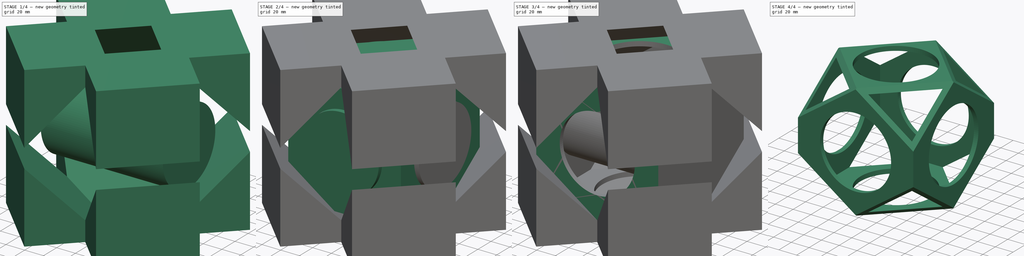
[diagram: build sequence overview — one tinted view per stage of 4, left to right]
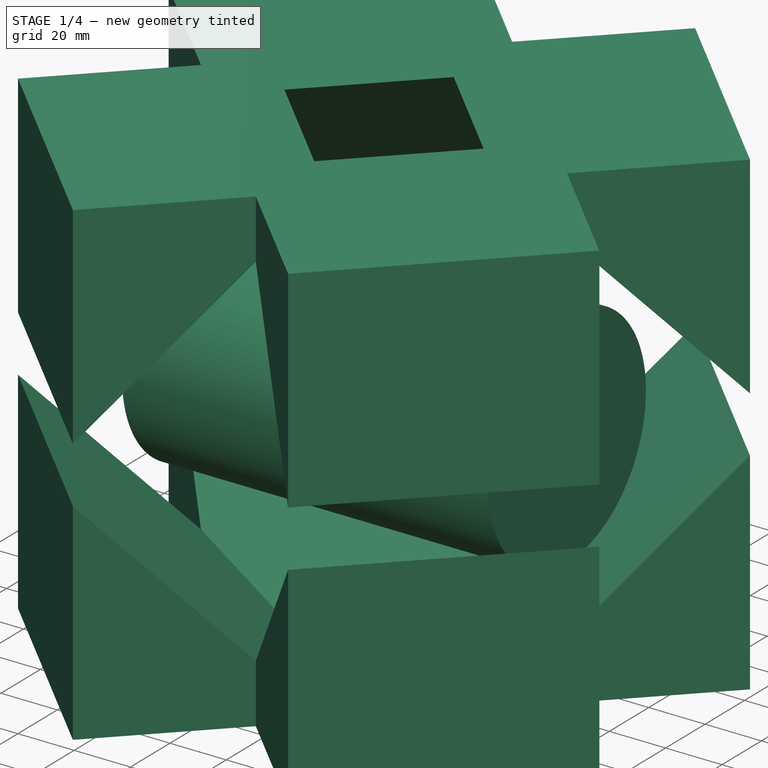
[diagram: stage 1 of 4 — iso view after this stage's code; geometry added in this stage tinted green]
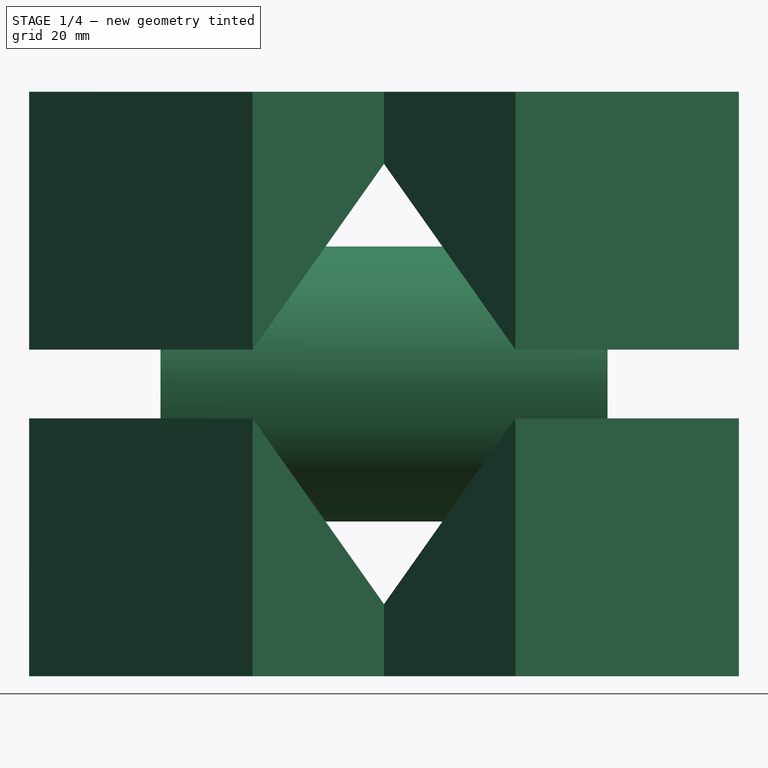
[diagram: stage 1 of 4 — front view after this stage's code; geometry added in this stage tinted green]
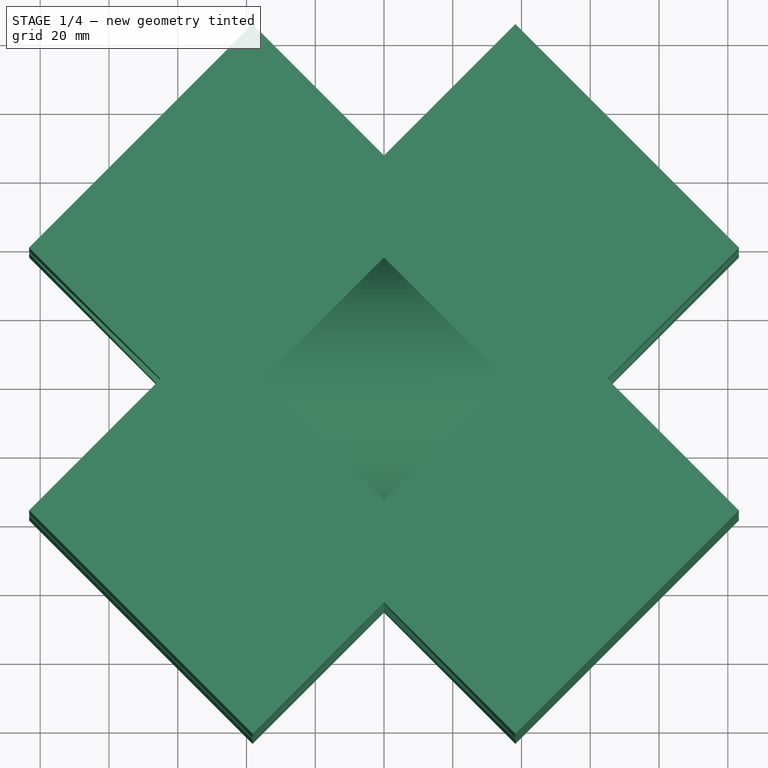
[diagram: stage 1 of 4 — top view after this stage's code; geometry added in this stage tinted green]
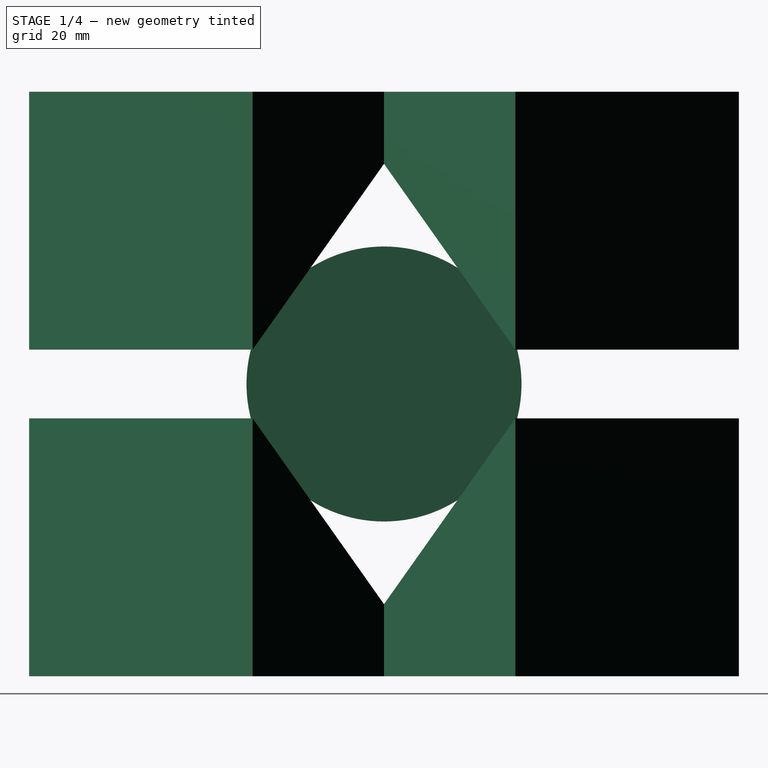
[diagram: stage 1 of 4 — right view after this stage's code; geometry added in this stage tinted green]
FCSTD DOCUMENT  (FreeCAD 0.15R4671 (Git))
Label: suoerdupercreationcube
License: All rights reserved
LicenseURL: http://en.wikipedia.org/wiki/All_rights_reserved
objects: Part::Cut×6, Part::Cylinder×3, Part::Box×2, Sketcher::SketchObject×2, PartDesign::Pad×2
note: 17 computed .brp shape members not serialized (recipe doc carries the construction recipe); baked Part::Feature solids carry a one-line shape summary decoded from their .brp

FEATURE [Part::Cylinder] Cylinder002
  Angle = 360
  Height = 130
  Placement = pos=(-65,0,0) rot=(0,1,0;1.5708rad)
  Radius = 40
FEATURE [Sketcher::SketchObject] Sketch
  Placement = pos=(0,0,0) rot=(-0.862856,-0.357407,-0.357407;4.56541rad)
  sketch-geometry (12):
    g0: LineSegment StartX=-100 StartY=10 StartZ=0 EndX=-100 EndY=85 EndZ=0
    g1: LineSegment StartX=-100 StartY=85 StartZ=0 EndX=-25 EndY=85 EndZ=0
    g2: LineSegment StartX=-25 StartY=85 StartZ=0 EndX=-100 EndY=10 EndZ=0
    g3: LineSegment StartX=25 StartY=85 StartZ=0 EndX=100 EndY=85 EndZ=0
    g4: LineSegment StartX=100 StartY=85 StartZ=0 EndX=100 EndY=10 EndZ=0
    g5: LineSegment StartX=100 StartY=10 StartZ=0 EndX=25 EndY=85 EndZ=0
    g6: LineSegment StartX=25 StartY=-85 StartZ=0 EndX=100 EndY=-85 EndZ=0
    g7: LineSegment StartX=100 StartY=-85 StartZ=0 EndX=100 EndY=-10 EndZ=0
    g8: LineSegment StartX=100 StartY=-10 StartZ=0 EndX=25 EndY=-85 EndZ=0
    g9: LineSegment StartX=-100 StartY=-10 StartZ=0 EndX=-100 EndY=-85 EndZ=0
    g10: LineSegment StartX=-100 StartY=-85 StartZ=0 EndX=-25 EndY=-85 EndZ=0
    g11: LineSegment StartX=-100 StartY=-10 StartZ=0 EndX=-25 EndY=-85 EndZ=0
  constraints (34):
    c: Vertical(g0)
    c: Coincident(g0,g1)
    c: Horizontal(g1)
    c: Coincident(g1,g2)
    c: Coincident(g2,g0)
    c: Horizontal(g3)
    c: Coincident(g3,g4)
    c: Vertical(g4)
    c: Coincident(g4,g5)
    c: Coincident(g5,g3)
    c: Horizontal(g6)
    c: Coincident(g6,g7)
    c: Vertical(g7)
    c: Coincident(g7,g8)
    c: Coincident(g8,g6)
    c: Vertical(g9)
    c: Coincident(g9,g10)
    c: Horizontal(g10)
    c: Coincident(g9,g11)
    c: Coincident(g11,g10)
    c: Equal(g0,g1)
    c: Equal(g1,g3)
    c: Equal(g3,g4)
    c: Equal(g4,g6)
    c: Equal(g6,g7)
    c: Equal(g7,g9)
    c: Equal(g9,g10)
    c: Symmetric(g0,g9,g-1)
    c: Symmetric(g1,g3,g-2)
    c: Symmetric(g4,g7,g-1)
    c: Symmetric(g10,g6,g-2)
    c: Distance(g0,g9) = 20
    c: DistanceX(g1,g3) = 50
    c: Distance(g0,g3) = 200
FEATURE [PartDesign::Pad] Pad
  Length = 91.9239
  Length2 = 100
  Midplane = true
  Placement = pos=(0,0,0) rot=(-0.862856,-0.357407,-0.357407;4.56541rad)
  Sketch = -> Sketch
  Type = 0
FEATURE [Sketcher::SketchObject] Sketch001
  Placement = pos=(0,0,0) rot=(0.281085,0.678598,0.678598;2.59356rad)
  sketch-geometry (12):
    g0: LineSegment StartX=-100 StartY=10 StartZ=0 EndX=-100 EndY=85 EndZ=0
    g1: LineSegment StartX=-100 StartY=85 StartZ=0 EndX=-25 EndY=85 EndZ=0
    g2: LineSegment StartX=-25 StartY=85 StartZ=0 EndX=-100 EndY=10 EndZ=0
    g3: LineSegment StartX=25 StartY=85 StartZ=0 EndX=100 EndY=85 EndZ=0
    g4: LineSegment StartX=100 StartY=85 StartZ=0 EndX=100 EndY=10 EndZ=0
    g5: LineSegment StartX=100 StartY=10 StartZ=0 EndX=25 EndY=85 EndZ=0
    g6: LineSegment StartX=25 StartY=-85 StartZ=0 EndX=100 EndY=-85 EndZ=0
    g7: LineSegment StartX=100 StartY=-85 StartZ=0 EndX=100 EndY=-10 EndZ=0
    g8: LineSegment StartX=100 StartY=-10 StartZ=0 EndX=25 EndY=-85 EndZ=0
    g9: LineSegment StartX=-100 StartY=-10 StartZ=0 EndX=-100 EndY=-85 EndZ=0
    g10: LineSegment StartX=-100 StartY=-85 StartZ=0 EndX=-25 EndY=-85 EndZ=0
    g11: LineSegment StartX=-100 StartY=-10 StartZ=0 EndX=-25 EndY=-85 EndZ=0
  constraints (34):
    c: Vertical(g0)
    c: Coincident(g0,g1)
    c: Horizontal(g1)
    c: Coincident(g1,g2)
    c: Coincident(g2,g0)
    c: Horizontal(g3)
    c: Coincident(g3,g4)
    c: Vertical(g4)
    c: Coincident(g4,g5)
    c: Coincident(g5,g3)
    c: Horizontal(g6)
    c: Coincident(g6,g7)
    c: Vertical(g7)
    c: Coincident(g7,g8)
    c: Coincident(g8,g6)
    c: Vertical(g9)
    c: Coincident(g9,g10)
    c: Horizontal(g10)
    c: Coincident(g9,g11)
    c: Coincident(g11,g10)
    c: Equal(g0,g1)
    c: Equal(g1,g3)
    c: Equal(g3,g4)
    c: Equal(g4,g6)
    c: Equal(g6,g7)
    c: Equal(g7,g9)
    c: Equal(g9,g10)
    c: Symmetric(g0,g9,g-1)
    c: Symmetric(g1,g3,g-2)
    c: Symmetric(g4,g7,g-1)
    c: Symmetric(g10,g6,g-2)
    c: Distance(g0,g9) = 20
    c: DistanceX(g1,g3) = 50
    c: Distance(g0,g3) = 200
FEATURE [PartDesign::Pad] Pad001
  Length = 91.9239
  Length2 = 100
  Midplane = true
  Placement = pos=(0,0,0) rot=(0.281085,0.678598,0.678598;2.59356rad)
  Sketch = -> Sketch001
  Type = 0
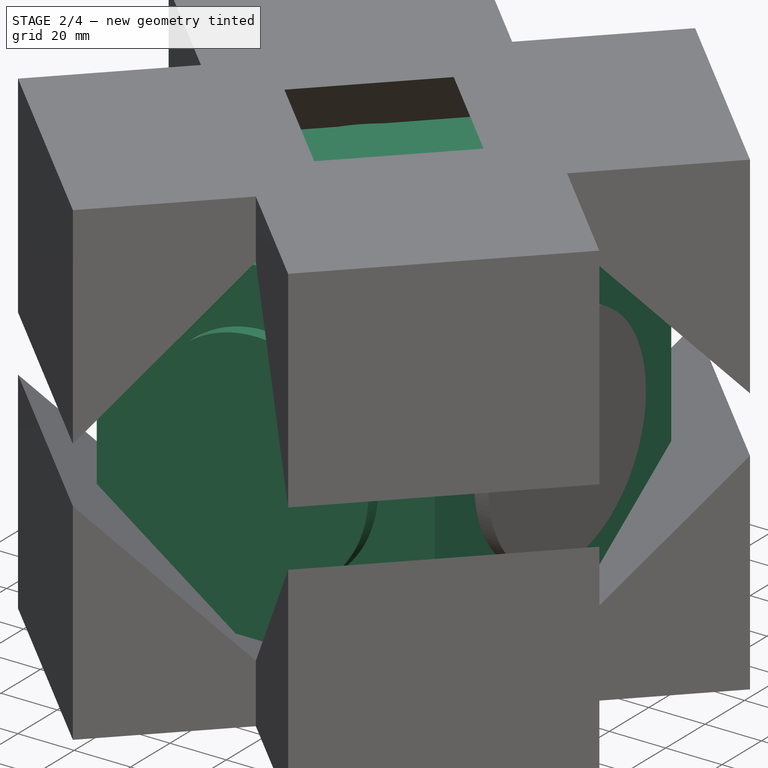
[diagram: stage 2 of 4 — iso view after this stage's code; geometry added in this stage tinted green]
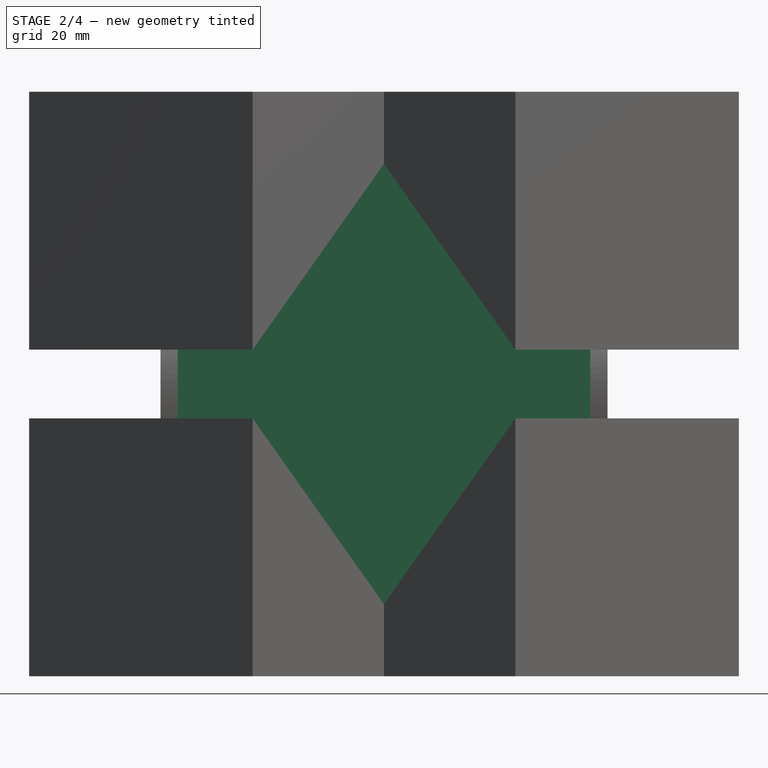
[diagram: stage 2 of 4 — front view after this stage's code; geometry added in this stage tinted green]
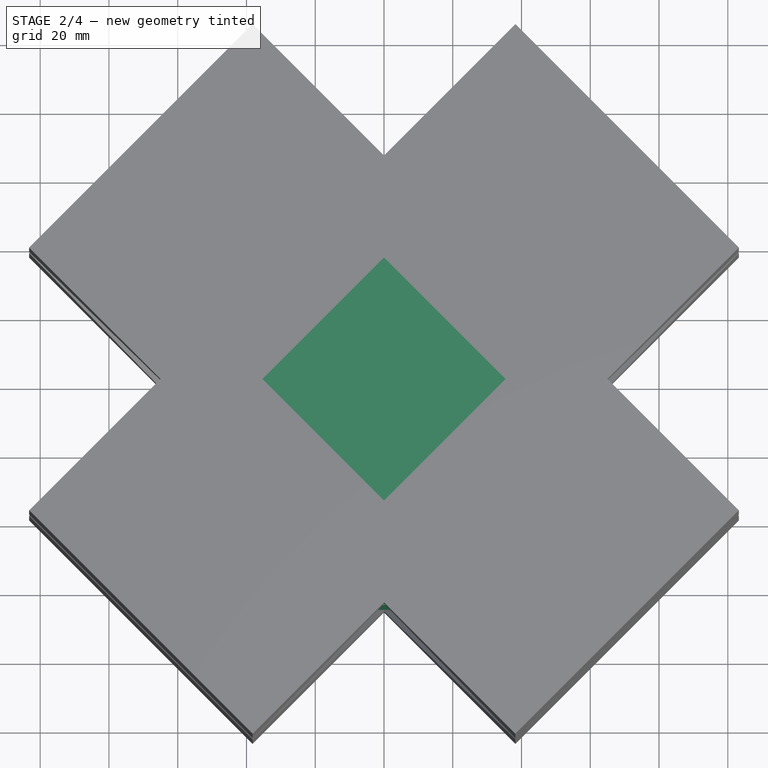
[diagram: stage 2 of 4 — top view after this stage's code; geometry added in this stage tinted green]
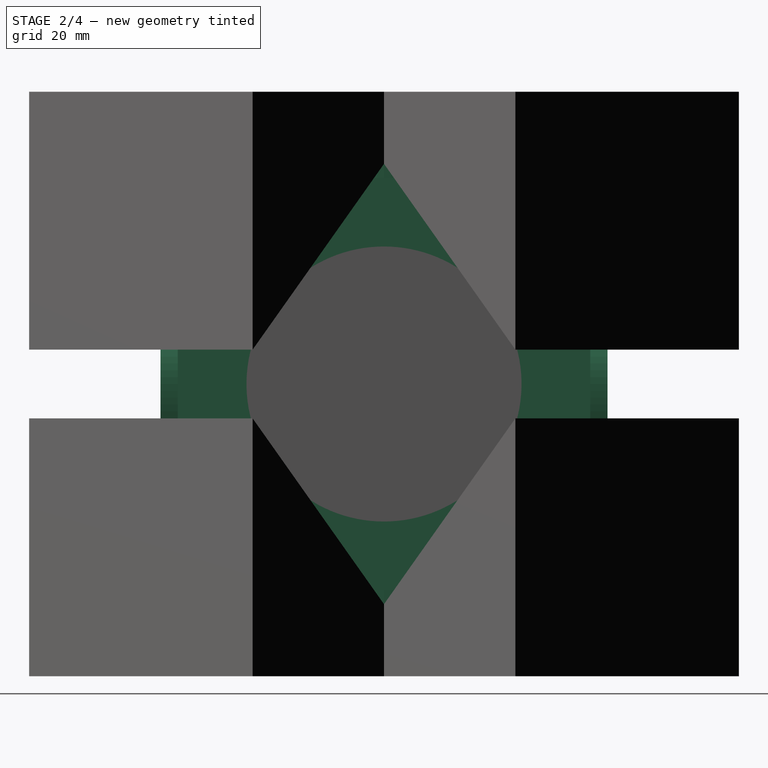
[diagram: stage 2 of 4 — right view after this stage's code; geometry added in this stage tinted green]
FEATURE [Part::Box] Box001  label="Cube001"
  Height = 120
  Length = 120
  Placement = pos=(-60,-60,-60) rot=(0,0,1;0rad)
  Width = 120
FEATURE [Part::Cylinder] Cylinder
  Angle = 360
  Height = 130
  Placement = pos=(0,0,-65) rot=(0,0,1;0rad)
  Radius = 40
FEATURE [Part::Cylinder] Cylinder001
  Angle = 360
  Height = 130
  Placement = pos=(0,65,0) rot=(1,0,0;1.5708rad)
  Radius = 40
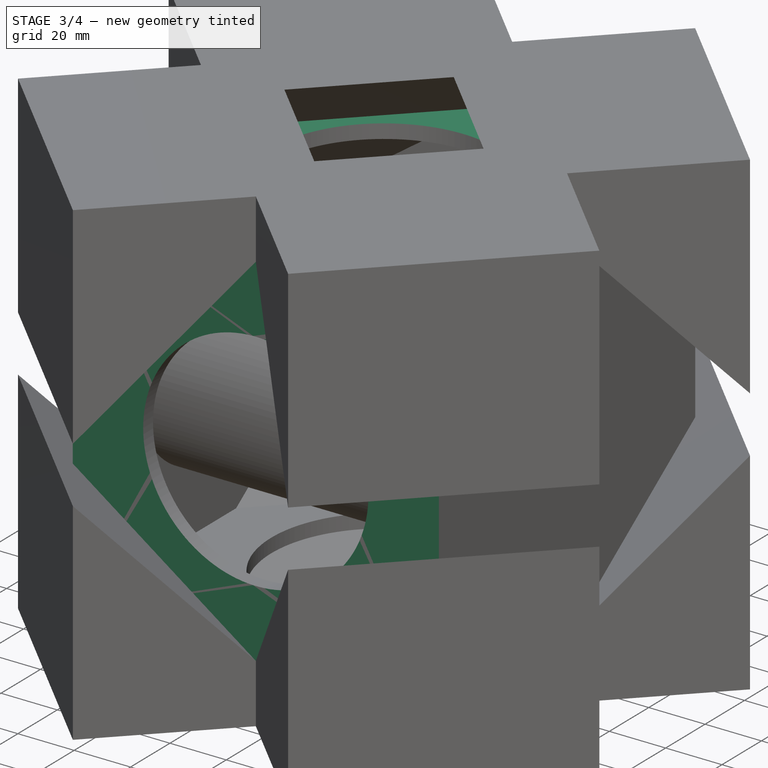
[diagram: stage 3 of 4 — iso view after this stage's code; geometry added in this stage tinted green]
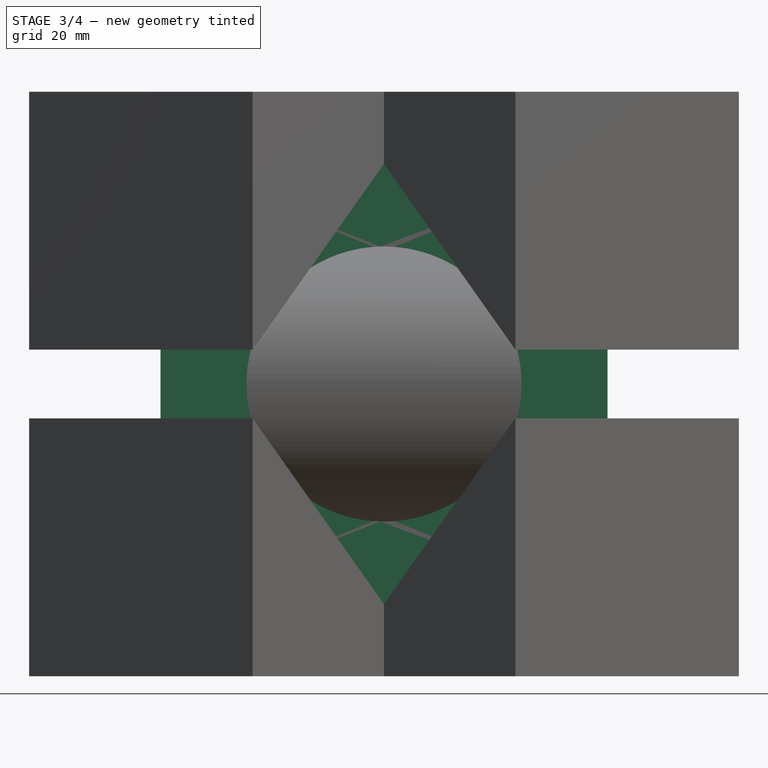
[diagram: stage 3 of 4 — front view after this stage's code; geometry added in this stage tinted green]
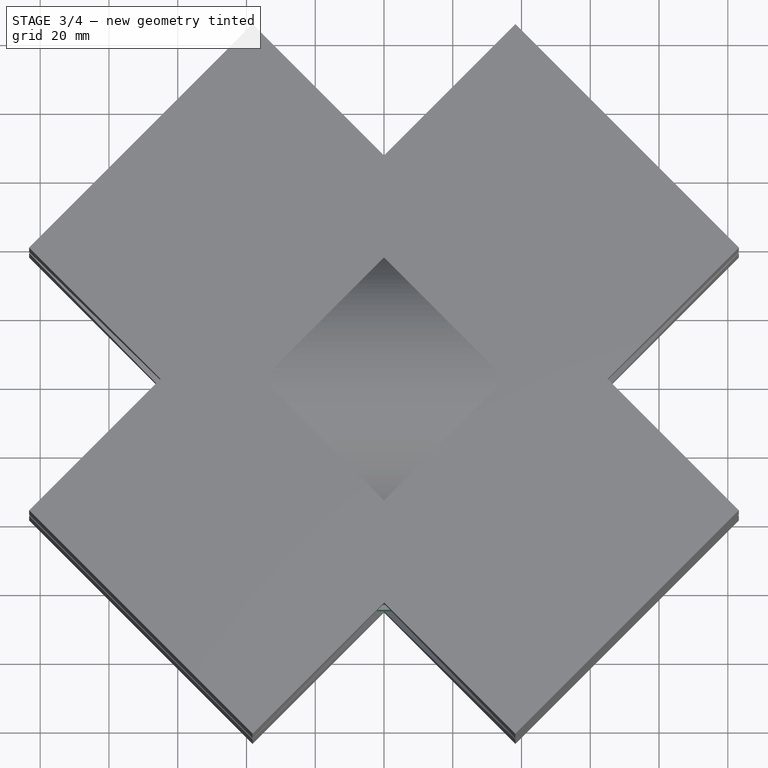
[diagram: stage 3 of 4 — top view after this stage's code; geometry added in this stage tinted green]
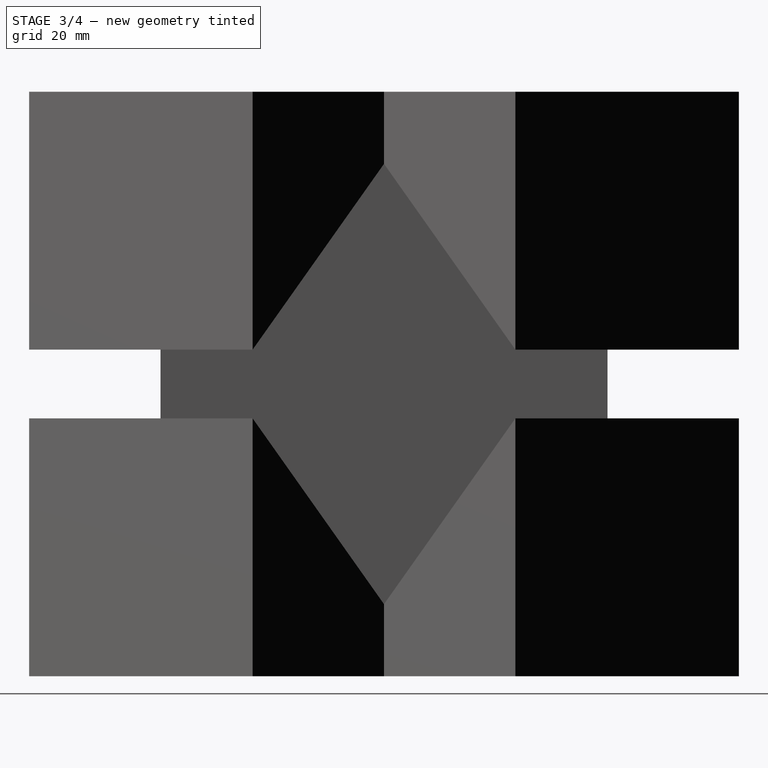
[diagram: stage 3 of 4 — right view after this stage's code; geometry added in this stage tinted green]
FEATURE [Part::Box] Box  label="Cube"
  Height = 130
  Length = 130
  Placement = pos=(-65,-65,-65) rot=(0,0,1;0rad)
  Width = 130
FEATURE [Part::Cut] Cut
  Base = -> Box
  Tool = -> Box001
FEATURE [Part::Cut] Cut001
  Base = -> Cut
  Tool = -> Cylinder
FEATURE [Part::Cut] Cut002
  Base = -> Cut001
  Tool = -> Cylinder001
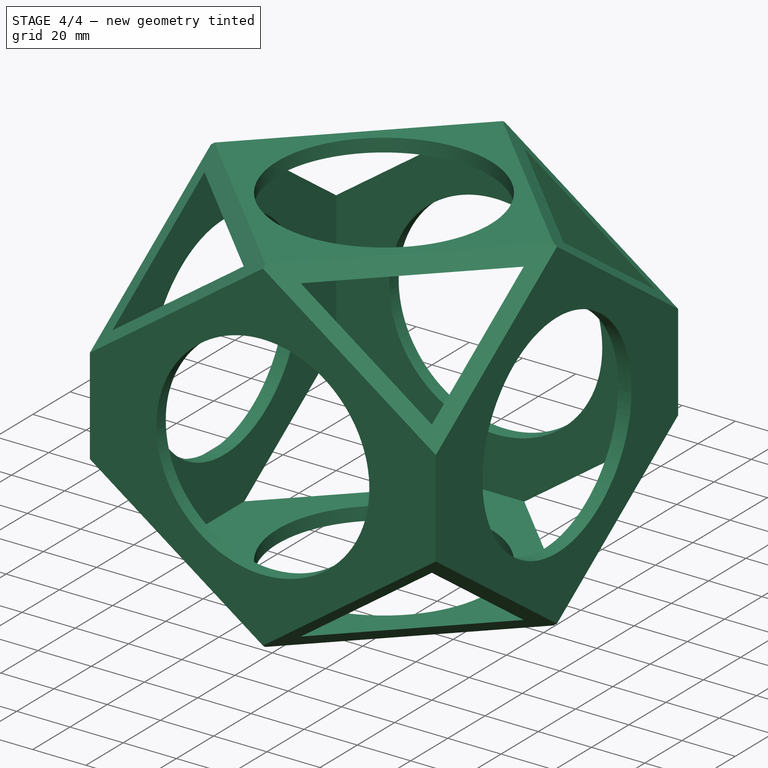
[diagram: stage 4 of 4 — iso view after this stage's code; geometry added in this stage tinted green]
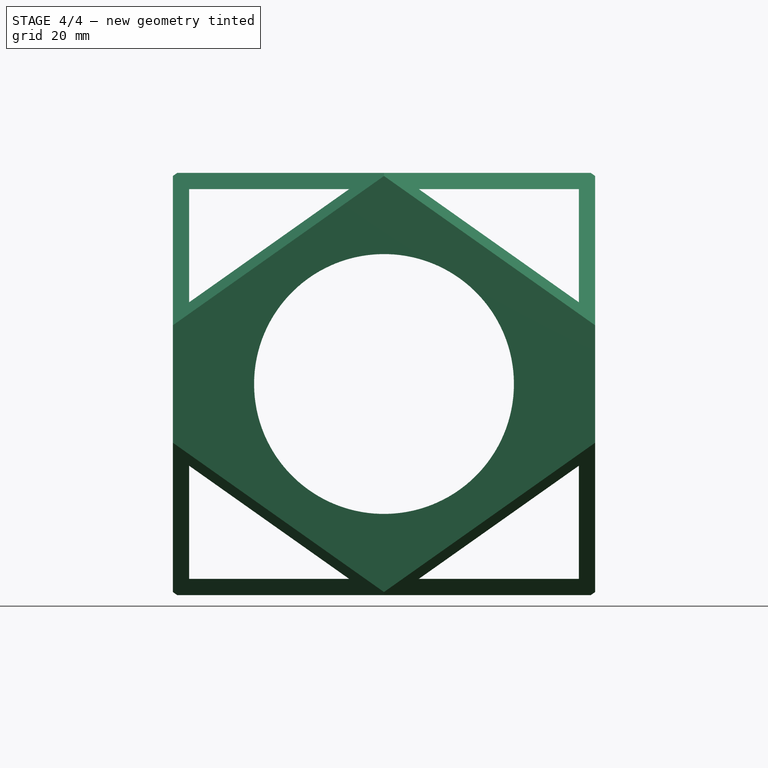
[diagram: stage 4 of 4 — front view after this stage's code; geometry added in this stage tinted green]
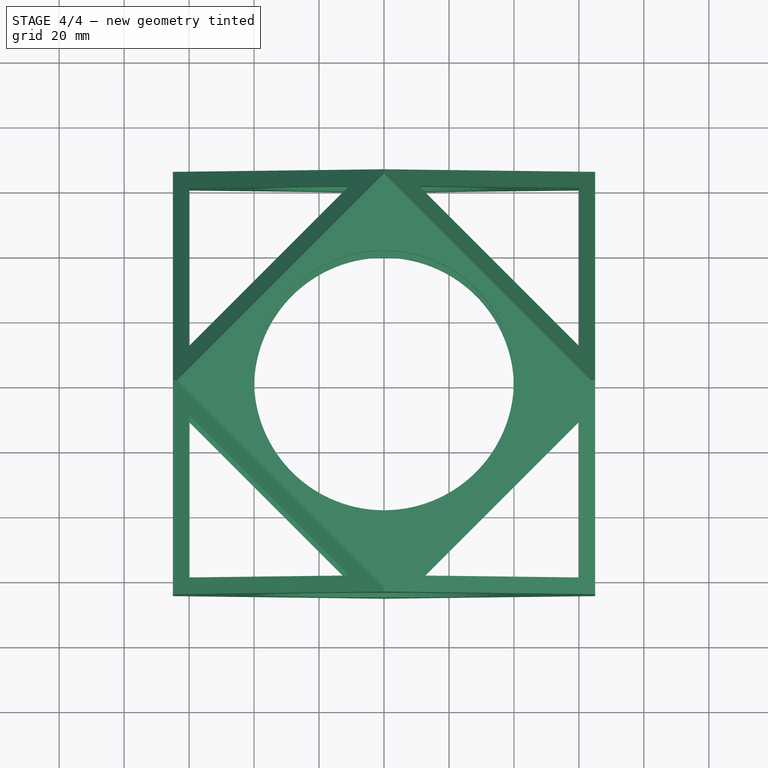
[diagram: stage 4 of 4 — top view after this stage's code; geometry added in this stage tinted green]
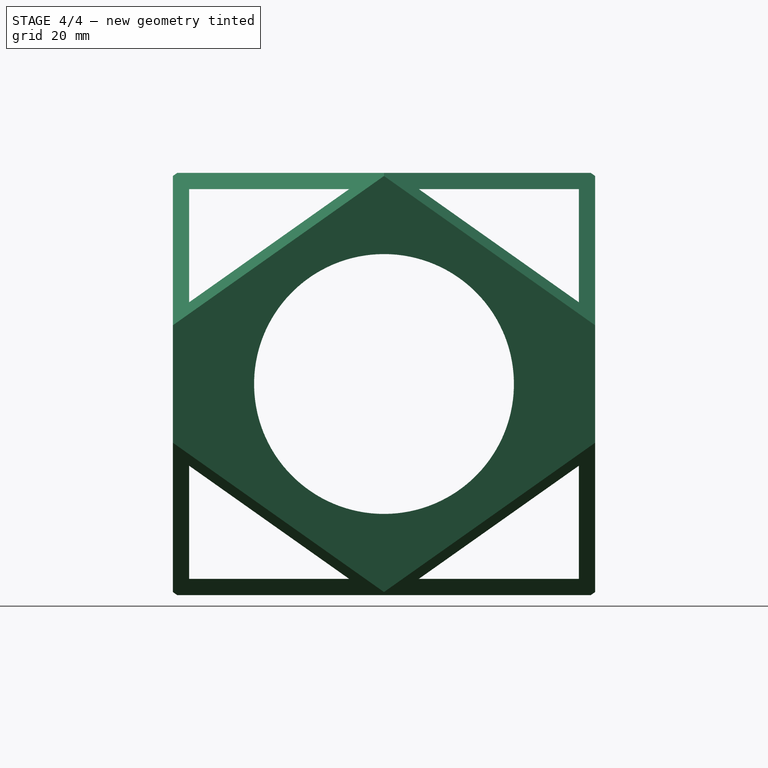
[diagram: stage 4 of 4 — right view after this stage's code; geometry added in this stage tinted green]
FEATURE [Part::Cut] Cut003
  Base = -> Cut002
  Tool = -> Cylinder002
FEATURE [Part::Cut] Cut004
  Base = -> Cut003
  Tool = -> Pad
FEATURE [Part::Cut] Cut005
  Base = -> Cut004
  Tool = -> Pad001
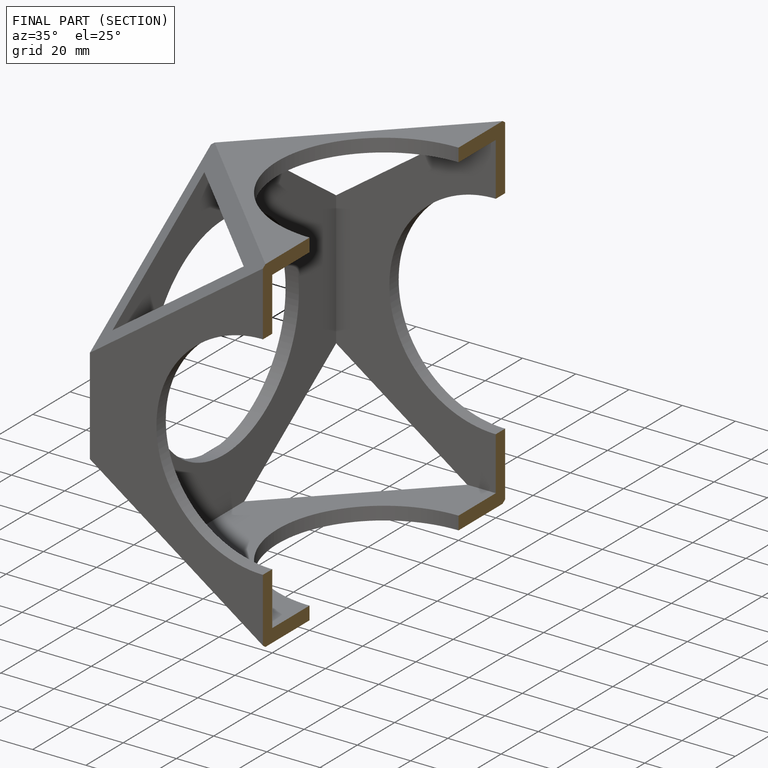
[diagram: finished part — half-section view (interior)]
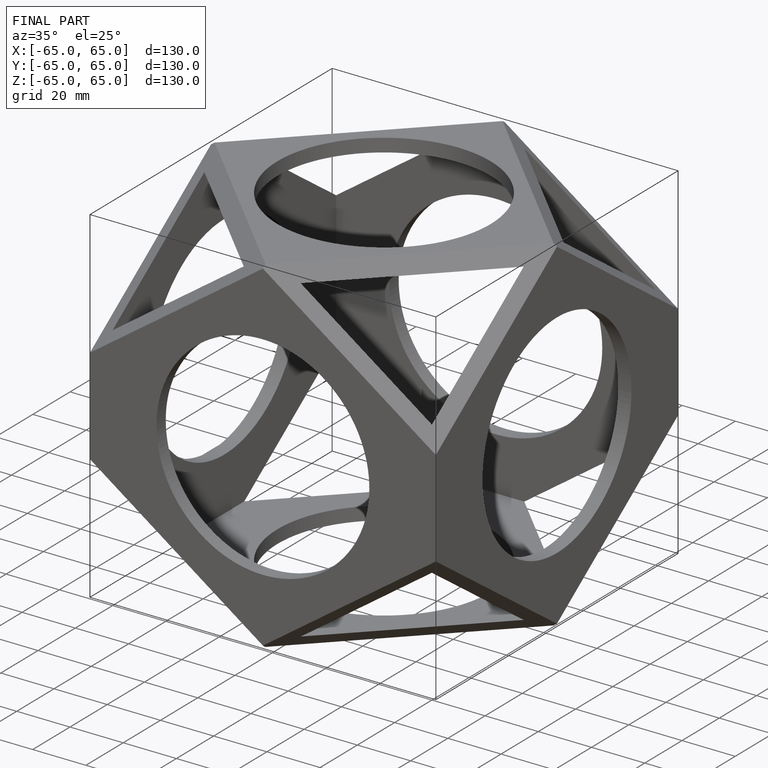
[diagram: finished part — iso view with bounding-box wireframe]
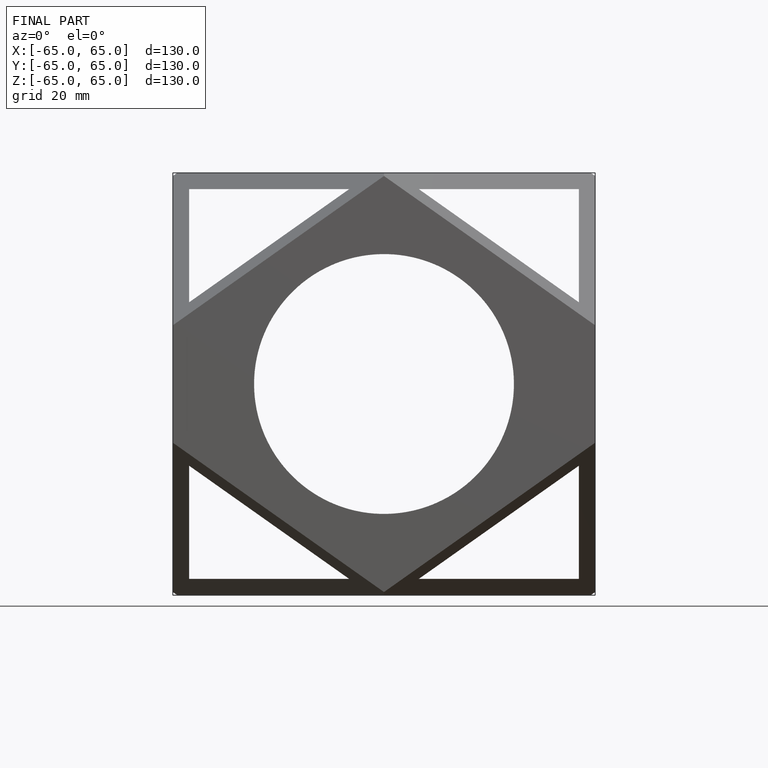
[diagram: finished part — front view with bounding-box wireframe]
